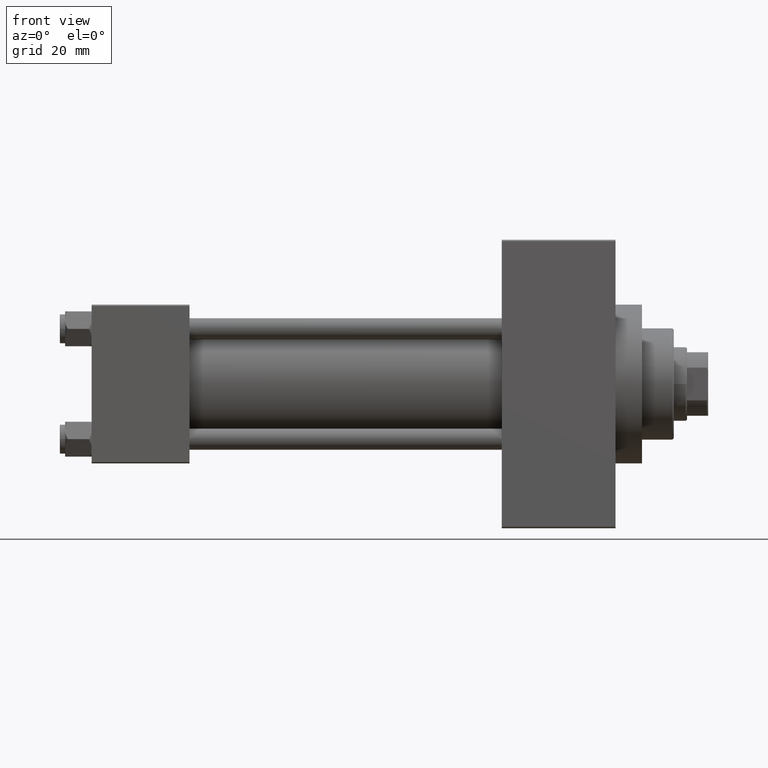
[diagram: clean part render]
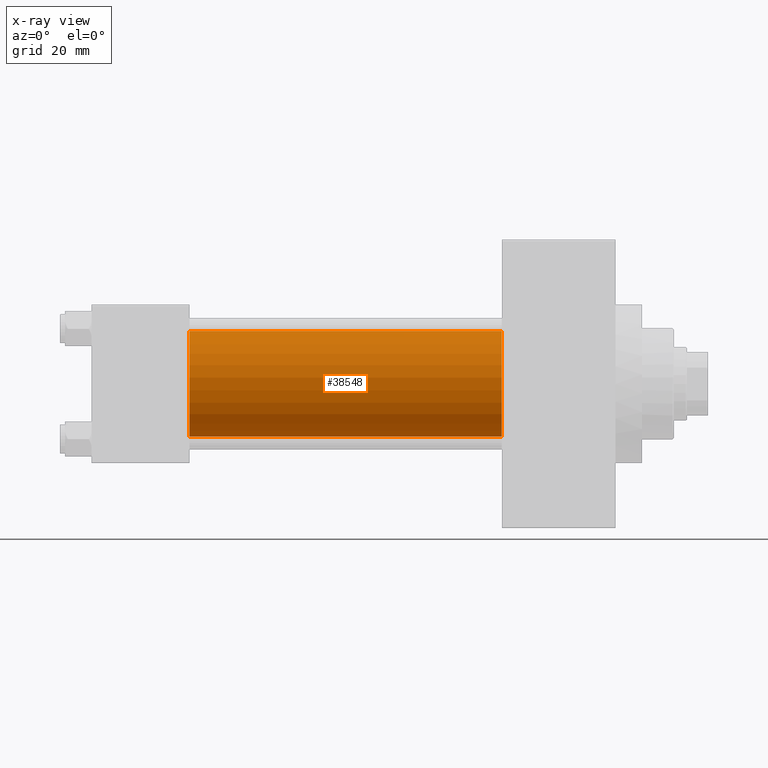
[diagram: x-ray — body ghosted, one internal face saturated and labeled with its STEP entity id]
A machine part, front view, then the same camera in x-ray: the body is ghosted and one INTERNAL B-rep face — a face not visible from any outside direction — is saturated and labeled: STEP entity #38548.
In plain terms, the highlighted cylindrical surface (partial cylindrical patch) has radius 20 mm, axis along (-1, -0, -0).
Its self-contained STEP definition (entity closure, byte-faithful):
#197 = CARTESIAN_POINT ( 'NONE',  ( 37.00000000000000000, -2.602085213965210642E-15, 20.00000000000000000 ) ) ;
#4389 = DIRECTION ( 'NONE',  ( -1.000000000000000000, -0.000000000000000000, -0.000000000000000000 ) ) ;
#4539 = VERTEX_POINT ( 'NONE', #8703 ) ;
#4994 = FACE_OUTER_BOUND ( 'NONE', #33818, .T. ) ;
#7989 = VERTEX_POINT ( 'NONE', #40414 ) ;
#8703 = CARTESIAN_POINT ( 'NONE',  ( 37.00000000000000000, -1.527916156705042519E-16, -20.00000000000000000 ) ) ;
#11195 = VERTEX_POINT ( 'NONE', #197 ) ;
#11770 = DIRECTION ( 'NONE',  ( 1.000000000000000000, 0.000000000000000000, 0.000000000000000000 ) ) ;
#12270 = CYLINDRICAL_SURFACE ( 'NONE', #15481, 20.00000000000000000 ) ;
#13981 = ORIENTED_EDGE ( 'NONE', *, *, #37953, .T. ) ;
#15481 = AXIS2_PLACEMENT_3D ( 'NONE', #35097, #47356, #46873 ) ;
#16806 = DIRECTION ( 'NONE',  ( -1.000000000000000000, -0.000000000000000000, -0.000000000000000000 ) ) ;
#17016 = VERTEX_POINT ( 'NONE', #35492 ) ;
#17751 = CIRCLE ( 'NONE', #39321, 20.00000000000000000 ) ;
#20153 = DIRECTION ( 'NONE',  ( 1.000000000000000000, 0.000000000000000000, 0.000000000000000000 ) ) ;
#21040 = VECTOR ( 'NONE', #4389, 1000.000000000000000 ) ;
#23311 = CARTESIAN_POINT ( 'NONE',  ( 155.0000000000000000, -2.602085213965210642E-15, 0.000000000000000000 ) ) ;
#23452 = LINE ( 'NONE', #26718, #21040 ) ;
#23622 = LINE ( 'NONE', #23858, #26722 ) ;
#23858 = CARTESIAN_POINT ( 'NONE',  ( 155.0000000000000000, -2.602085213965210642E-15, 20.00000000000000000 ) ) ;
#24679 = ORIENTED_EDGE ( 'NONE', *, *, #40302, .T. ) ;
#26718 = CARTESIAN_POINT ( 'NONE',  ( 155.0000000000000000, -1.527916156705042519E-16, -20.00000000000000000 ) ) ;
#26722 = VECTOR ( 'NONE', #16806, 1000.000000000000000 ) ;
#28373 = CIRCLE ( 'NONE', #31562, 20.00000000000000000 ) ;
#29262 = EDGE_CURVE ( 'NONE', #7989, #11195, #23622, .T. ) ;
#31562 = AXIS2_PLACEMENT_3D ( 'NONE', #23311, #11770, #43098 ) ;
#33818 = EDGE_LOOP ( 'NONE', ( #24679, #13981, #42263, #49068 ) ) ;
#35090 = EDGE_CURVE ( 'NONE', #11195, #4539, #17751, .T. ) ;
#35097 = CARTESIAN_POINT ( 'NONE',  ( 155.0000000000000000, -2.602085213965210642E-15, 0.000000000000000000 ) ) ;
#35492 = CARTESIAN_POINT ( 'NONE',  ( 155.0000000000000000, -1.527916156705042519E-16, -20.00000000000000000 ) ) ;
#37953 = EDGE_CURVE ( 'NONE', #17016, #4539, #23452, .T. ) ;
#38548 = ADVANCED_FACE ( 'NONE', ( #4994 ), #12270, .F. ) ;
#39321 = AXIS2_PLACEMENT_3D ( 'NONE', #42981, #20153, #39453 ) ;
#39453 = DIRECTION ( 'NONE',  ( 0.000000000000000000, 0.000000000000000000, -1.000000000000000000 ) ) ;
#40302 = EDGE_CURVE ( 'NONE', #7989, #17016, #28373, .T. ) ;
#40414 = CARTESIAN_POINT ( 'NONE',  ( 155.0000000000000000, -2.602085213965210642E-15, 20.00000000000000000 ) ) ;
#42263 = ORIENTED_EDGE ( 'NONE', *, *, #35090, .F. ) ;
#42981 = CARTESIAN_POINT ( 'NONE',  ( 37.00000000000000000, -2.602085213965210642E-15, 0.000000000000000000 ) ) ;
#43098 = DIRECTION ( 'NONE',  ( 0.000000000000000000, 0.000000000000000000, -1.000000000000000000 ) ) ;
#46873 = DIRECTION ( 'NONE',  ( 0.000000000000000000, 0.000000000000000000, 1.000000000000000000 ) ) ;
#47356 = DIRECTION ( 'NONE',  ( -1.000000000000000000, -0.000000000000000000, -0.000000000000000000 ) ) ;
#49068 = ORIENTED_EDGE ( 'NONE', *, *, #29262, .F. ) ;